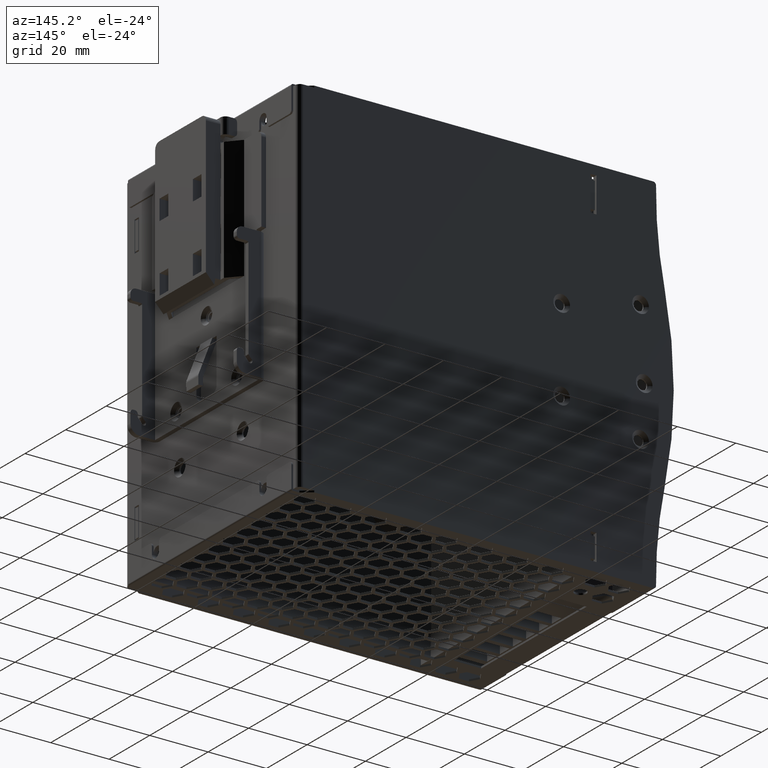
[diagram: clean part render]
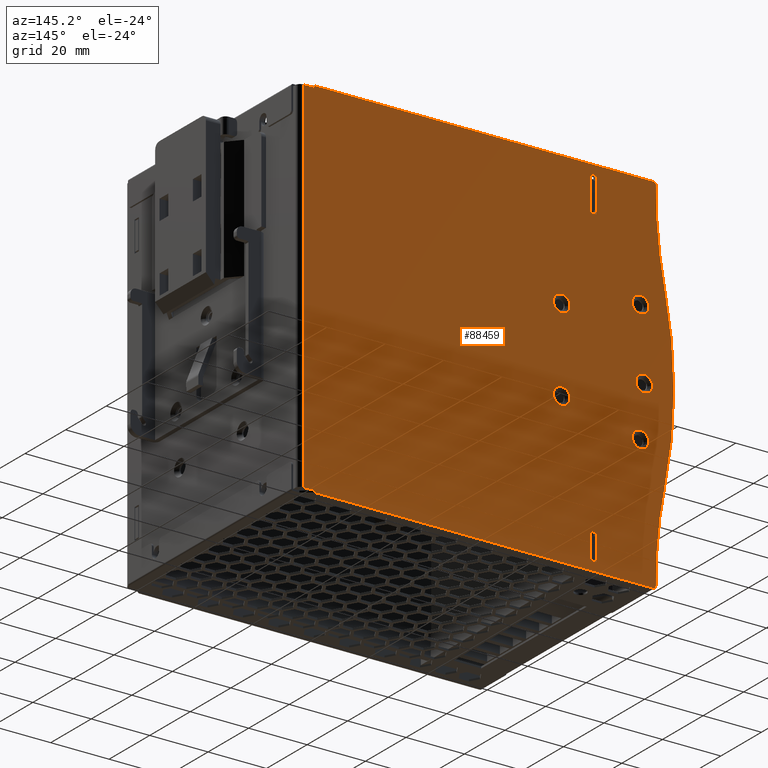
[diagram: same view with one face highlighted and labeled with its STEP entity id]
A machine part, auxiliary view. The second image highlights one B-rep face of the part: STEP entity #88459.
In plain terms, the highlighted planar face has unit normal (0, 1, 0).
Its self-contained STEP definition (entity closure, byte-faithful):
#9999=CARTESIAN_POINT('',(1782.250580458670400,98.986136999999999,9015.250615493780100));
#10000=VERTEX_POINT('',#9999);
#10007=CARTESIAN_POINT('',(1779.235383394250200,98.986136999999999,9046.731169943999700));
#10008=VERTEX_POINT('',#10007);
#10009=CARTESIAN_POINT('',(1929.642058532419900,98.986136999999999,9045.252396892430600));
#10010=DIRECTION('',(0.0,-1.0,0.0));
#10011=DIRECTION('',(1.0,0.0,0.0));
#10012=AXIS2_PLACEMENT_3D('',#10009,#10010,#10011);
#10013=CIRCLE('',#10012,150.413944486070020);
#10014=EDGE_CURVE('',#10008,#10000,#10013,.T.);
#10049=CARTESIAN_POINT('',(1782.250580458670400,98.986136999999999,8955.031387106919300));
#10050=VERTEX_POINT('',#10049);
#10057=CARTESIAN_POINT('',(1634.793260759230200,98.986136999999999,8985.141001300349700));
#10058=DIRECTION('',(0.0,-1.0,0.0));
#10059=DIRECTION('',(1.0,0.0,0.0));
#10060=AXIS2_PLACEMENT_3D('',#10057,#10058,#10059);
#10061=CIRCLE('',#10060,150.499999999401010);
#10062=EDGE_CURVE('',#10050,#10000,#10061,.T.);
#10303=CARTESIAN_POINT('',(1779.235383394250200,98.986136999999999,8923.550832656699600));
#10304=VERTEX_POINT('',#10303);
#10311=CARTESIAN_POINT('',(1929.642058532419900,98.986136999999999,8925.029605708270500));
#10312=DIRECTION('',(0.0,-1.0,0.0));
#10313=DIRECTION('',(1.0,0.0,0.0));
#10314=AXIS2_PLACEMENT_3D('',#10311,#10312,#10313);
#10315=CIRCLE('',#10314,150.413944486065990);
#10316=EDGE_CURVE('',#10050,#10304,#10315,.T.);
#10336=CARTESIAN_POINT('',(1778.235431723200000,98.986136999999999,8922.541001300600300));
#10337=VERTEX_POINT('',#10336);
#10344=CARTESIAN_POINT('',(1778.235431723200000,98.986136999999999,8923.541001300600300));
#10345=DIRECTION('',(0.0,-1.0,0.0));
#10346=DIRECTION('',(1.0,0.0,0.0));
#10347=AXIS2_PLACEMENT_3D('',#10344,#10345,#10346);
#10348=CIRCLE('',#10347,0.999999999998181);
#10349=EDGE_CURVE('',#10337,#10304,#10348,.T.);
#20259=CARTESIAN_POINT('',(1778.628123532730300,98.986137000000127,9045.202437894378800));
#20260=VERTEX_POINT('',#20259);
#20267=CARTESIAN_POINT('',(1781.106302798690200,98.986137000000127,9018.006636599000600));
#20268=VERTEX_POINT('',#20267);
#20269=CARTESIAN_POINT('',(1929.659298118490100,98.986136999999999,9045.254130987388600));
#20270=DIRECTION('',(0.0,-1.0,0.0));
#20271=DIRECTION('',(1.0,0.0,0.0));
#20272=AXIS2_PLACEMENT_3D('',#20269,#20270,#20271);
#20273=CIRCLE('',#20272,151.031183432202990);
#20274=EDGE_CURVE('',#20260,#20268,#20273,.T.);
#20986=CARTESIAN_POINT('',(1778.235431723200000,98.986136999999999,9047.741001300100800));
#20987=VERTEX_POINT('',#20986);
#20994=CARTESIAN_POINT('',(1662.193260303899900,98.986136999999999,9047.741001300100800));
#20995=VERTEX_POINT('',#20994);
#20996=CARTESIAN_POINT('',(1662.193260303899900,98.986136999999999,9047.741001300100800));
#20997=DIRECTION('',(1.0,0.0,0.0));
#20998=VECTOR('',#20997,116.042171419300080);
#20999=LINE('',#20996,#20998);
#21000=EDGE_CURVE('',#20995,#20987,#20999,.T.);
#30788=CARTESIAN_POINT('',(1778.235431723200000,98.986136999999999,9046.741001300102700));
#30789=DIRECTION('',(0.0,-1.0,0.0));
#30790=DIRECTION('',(1.0,0.0,0.0));
#30791=AXIS2_PLACEMENT_3D('',#30788,#30789,#30790);
#30792=CIRCLE('',#30791,0.999999999996302);
#30793=EDGE_CURVE('',#10008,#20987,#30792,.T.);
#30898=CARTESIAN_POINT('',(1662.193260303910200,98.986137000000127,8923.141001300600700));
#30899=VERTEX_POINT('',#30898);
#30900=CARTESIAN_POINT('',(1662.193260303899900,98.986137000000127,8922.541001300600300));
#30901=VERTEX_POINT('',#30900);
#30902=CARTESIAN_POINT('',(1662.193260303910200,98.986137000000127,8923.141001300600700));
#30903=DIRECTION('',(-1.705303E-011,0.0,-1.0));
#30904=VECTOR('',#30903,0.600000000000364);
#30905=LINE('',#30902,#30904);
#30906=EDGE_CURVE('',#30899,#30901,#30905,.T.);
#30937=CARTESIAN_POINT('',(1662.193260303899900,98.986136999999999,9047.141001300100500));
#30938=VERTEX_POINT('',#30937);
#30939=CARTESIAN_POINT('',(1662.193260303899900,98.986136999999999,9047.741001300100800));
#30940=DIRECTION('',(0.0,0.0,-1.0));
#30941=VECTOR('',#30940,0.600000000000364);
#30942=LINE('',#30939,#30941);
#30943=EDGE_CURVE('',#20995,#30938,#30942,.T.);
#31710=CARTESIAN_POINT('',(1778.235431723200000,98.986136999999999,8922.541001300600300));
#31711=DIRECTION('',(-1.0,0.0,0.0));
#31712=VECTOR('',#31711,116.042171419300080);
#31713=LINE('',#31710,#31712);
#31714=EDGE_CURVE('',#10337,#30901,#31713,.T.);
#85556=CARTESIAN_POINT('',(1781.106334254110200,98.986137000000127,8952.275537495708700));
#85557=VERTEX_POINT('',#85556);
#85564=CARTESIAN_POINT('',(1778.628123532830400,98.986137000000127,8925.079564995070500));
#85565=VERTEX_POINT('',#85564);
#85566=CARTESIAN_POINT('',(1929.659298118490100,98.986136999999999,8925.027871613339800));
#85567=DIRECTION('',(0.0,-1.0,0.0));
#85568=DIRECTION('',(1.0,0.0,0.0));
#85569=AXIS2_PLACEMENT_3D('',#85566,#85567,#85568);
#85570=CIRCLE('',#85569,151.031183432198990);
#85571=EDGE_CURVE('',#85557,#85565,#85570,.T.);
#87158=CARTESIAN_POINT('',(1658.393260576750000,98.986137000000127,9047.141001601199600));
#87159=VERTEX_POINT('',#87158);
#87160=CARTESIAN_POINT('',(1658.393260576750000,98.986137000000127,9047.141001601199600));
#87161=DIRECTION('',(0.999999999999997,-3.365729E-014,-0.000000079236620));
#87162=VECTOR('',#87161,3.799999727149964);
#87163=LINE('',#87160,#87162);
#87164=EDGE_CURVE('',#87159,#30938,#87163,.T.);
#87222=CARTESIAN_POINT('',(1658.393260576750000,98.986137000000127,8923.141001601199600));
#87223=VERTEX_POINT('',#87222);
#87231=CARTESIAN_POINT('',(1658.393260576750000,98.986137000000127,8923.141001601199600));
#87232=DIRECTION('',(0.999999999999997,0.0,-0.000000079104983));
#87233=VECTOR('',#87232,3.799999727160196);
#87234=LINE('',#87231,#87233);
#87235=EDGE_CURVE('',#87223,#30899,#87234,.T.);
#87269=CARTESIAN_POINT('',(1658.393260576750000,98.986137000000127,8923.141001601199600));
#87270=DIRECTION('',(0.0,0.0,1.0));
#87271=VECTOR('',#87270,124.0);
#87272=LINE('',#87269,#87271);
#87273=EDGE_CURVE('',#87223,#87159,#87272,.T.);
#88267=CARTESIAN_POINT('',(1928.628117575769900,98.986137000000127,8925.121837095779500));
#88268=DIRECTION('',(0.0,-1.0,0.0));
#88269=DIRECTION('',(0.0,0.0,1.0));
#88270=AXIS2_PLACEMENT_3D('',#88267,#88268,#88269);
#88271=CIRCLE('',#88270,149.999999999380010);
#88272=EDGE_CURVE('',#85557,#85565,#88271,.T.);
#88303=CARTESIAN_POINT('',(1668.443260576750200,98.986137000000127,8997.141001601199600));
#88304=DIRECTION('',(0.0,1.0,0.0));
#88305=DIRECTION('',(0.0,0.0,1.0));
#88306=AXIS2_PLACEMENT_3D('',#88303,#88304,#88305);
#88307=PLANE('',#88306);
#88308=ORIENTED_EDGE('',*,*,#87235,.F.);
#88309=ORIENTED_EDGE('',*,*,#87273,.T.);
#88310=ORIENTED_EDGE('',*,*,#87164,.T.);
#88311=ORIENTED_EDGE('',*,*,#30943,.F.);
#88312=ORIENTED_EDGE('',*,*,#21000,.T.);
#88313=ORIENTED_EDGE('',*,*,#30793,.F.);
#88314=ORIENTED_EDGE('',*,*,#10014,.T.);
#88315=ORIENTED_EDGE('',*,*,#10062,.F.);
#88316=ORIENTED_EDGE('',*,*,#10316,.T.);
#88317=ORIENTED_EDGE('',*,*,#10349,.F.);
#88318=ORIENTED_EDGE('',*,*,#31714,.T.);
#88319=ORIENTED_EDGE('',*,*,#30906,.F.);
#88320=EDGE_LOOP('',(#88308,#88309,#88310,#88311,#88312,#88313,#88314,#88315,#88316,#88317,#88318,#88319));
#88321=FACE_OUTER_BOUND('',#88320,.T.);
#88322=CARTESIAN_POINT('',(1928.628117575769900,98.986137000000127,9045.160166106099500));
#88323=DIRECTION('',(0.0,-1.0,0.0));
#88324=DIRECTION('',(0.0,0.0,1.0));
#88325=AXIS2_PLACEMENT_3D('',#88322,#88323,#88324);
#88326=CIRCLE('',#88325,149.999999999391010);
#88327=EDGE_CURVE('',#20260,#20268,#88326,.T.);
#88328=ORIENTED_EDGE('',*,*,#88327,.T.);
#88329=ORIENTED_EDGE('',*,*,#20274,.F.);
#88330=EDGE_LOOP('',(#88328,#88329));
#88331=FACE_BOUND('',#88330,.T.);
#88332=ORIENTED_EDGE('',*,*,#85571,.F.);
#88333=ORIENTED_EDGE('',*,*,#88272,.T.);
#88334=EDGE_LOOP('',(#88332,#88333));
#88335=FACE_BOUND('',#88334,.T.);
#88336=CARTESIAN_POINT('',(1756.843718376460200,98.986137000000127,8925.641001601190500));
#88337=VERTEX_POINT('',#88336);
#88338=CARTESIAN_POINT('',(1758.843718376450400,98.986137000000127,8925.641001601190500));
#88339=VERTEX_POINT('',#88338);
#88340=CARTESIAN_POINT('',(1756.843718376460200,98.986137000000127,8925.641001601190500));
#88341=DIRECTION('',(1.0,0.0,0.0));
#88342=VECTOR('',#88341,1.999999999990223);
#88343=LINE('',#88340,#88342);
#88344=EDGE_CURVE('',#88337,#88339,#88343,.T.);
#88345=ORIENTED_EDGE('',*,*,#88344,.T.);
#88346=CARTESIAN_POINT('',(1758.843718376450400,98.986137000000127,8937.641001601150500));
#88347=VERTEX_POINT('',#88346);
#88348=CARTESIAN_POINT('',(1758.843718376450400,98.986137000000127,8925.641001601190500));
#88349=DIRECTION('',(0.0,0.0,1.0));
#88350=VECTOR('',#88349,11.999999999959982);
#88351=LINE('',#88348,#88350);
#88352=EDGE_CURVE('',#88339,#88347,#88351,.T.);
#88353=ORIENTED_EDGE('',*,*,#88352,.T.);
#88354=CARTESIAN_POINT('',(1756.843718376460200,98.986137000000127,8937.641001601150500));
#88355=VERTEX_POINT('',#88354);
#88356=CARTESIAN_POINT('',(1758.843718376450400,98.986137000000127,8937.641001601150500));
#88357=DIRECTION('',(-1.0,0.0,0.0));
#88358=VECTOR('',#88357,1.999999999990223);
#88359=LINE('',#88356,#88358);
#88360=EDGE_CURVE('',#88347,#88355,#88359,.T.);
#88361=ORIENTED_EDGE('',*,*,#88360,.T.);
#88362=CARTESIAN_POINT('',(1756.843718376460200,98.986137000000127,8937.641001601150500));
#88363=DIRECTION('',(0.0,0.0,-1.0));
#88364=VECTOR('',#88363,11.999999999959982);
#88365=LINE('',#88362,#88364);
#88366=EDGE_CURVE('',#88355,#88337,#88365,.T.);
#88367=ORIENTED_EDGE('',*,*,#88366,.T.);
#88368=EDGE_LOOP('',(#88345,#88353,#88361,#88367));
#88369=FACE_BOUND('',#88368,.T.);
#88370=CARTESIAN_POINT('',(1756.843718376460200,98.986137000000127,9035.641001600761200));
#88371=VERTEX_POINT('',#88370);
#88372=CARTESIAN_POINT('',(1758.843718376450400,98.986137000000127,9035.641001600761200));
#88373=VERTEX_POINT('',#88372);
#88374=CARTESIAN_POINT('',(1756.843718376460200,98.986137000000127,9035.641001600761200));
#88375=DIRECTION('',(1.0,0.0,0.0));
#88376=VECTOR('',#88375,1.999999999990223);
#88377=LINE('',#88374,#88376);
#88378=EDGE_CURVE('',#88371,#88373,#88377,.T.);
#88379=ORIENTED_EDGE('',*,*,#88378,.T.);
#88380=CARTESIAN_POINT('',(1758.843718376450400,98.986137000000127,9044.641001600710300));
#88381=VERTEX_POINT('',#88380);
#88382=CARTESIAN_POINT('',(1758.843718376450400,98.986137000000127,9035.641001600761200));
#88383=DIRECTION('',(0.0,0.0,1.0));
#88384=VECTOR('',#88383,8.999999999949068);
#88385=LINE('',#88382,#88384);
#88386=EDGE_CURVE('',#88373,#88381,#88385,.T.);
#88387=ORIENTED_EDGE('',*,*,#88386,.T.);
#88388=CARTESIAN_POINT('',(1756.843718376460200,98.986137000000127,9044.641001600710300));
#88389=VERTEX_POINT('',#88388);
#88390=CARTESIAN_POINT('',(1758.843718376450400,98.986137000000127,9044.641001600710300));
#88391=DIRECTION('',(-1.0,0.0,0.0));
#88392=VECTOR('',#88391,1.999999999990223);
#88393=LINE('',#88390,#88392);
#88394=EDGE_CURVE('',#88381,#88389,#88393,.T.);
#88395=ORIENTED_EDGE('',*,*,#88394,.T.);
#88396=CARTESIAN_POINT('',(1756.843718376460200,98.986137000000127,9044.641001600710300));
#88397=DIRECTION('',(0.0,0.0,-1.0));
#88398=VECTOR('',#88397,8.999999999949068);
#88399=LINE('',#88396,#88398);
#88400=EDGE_CURVE('',#88389,#88371,#88399,.T.);
#88401=ORIENTED_EDGE('',*,*,#88400,.T.);
#88402=EDGE_LOOP('',(#88379,#88387,#88395,#88401));
#88403=FACE_BOUND('',#88402,.T.);
#88404=CARTESIAN_POINT('',(1776.793718376460200,98.986137000000127,9003.041031600880200));
#88405=VERTEX_POINT('',#88404);
#88406=CARTESIAN_POINT('',(1773.943718376459900,98.986137000000127,9003.041031600880200));
#88407=DIRECTION('',(0.0,-1.0,0.0));
#88408=DIRECTION('',(-1.0,0.0,0.0));
#88409=AXIS2_PLACEMENT_3D('',#88406,#88407,#88408);
#88410=CIRCLE('',#88409,2.850000000000001);
#88411=EDGE_CURVE('',#88405,#88405,#88410,.T.);
#88412=ORIENTED_EDGE('',*,*,#88411,.T.);
#88413=EDGE_LOOP('',(#88412));
#88414=FACE_BOUND('',#88413,.T.);
#88415=CARTESIAN_POINT('',(1778.043718376460200,98.986137000000127,8985.541001600930000));
#88416=VERTEX_POINT('',#88415);
#88417=CARTESIAN_POINT('',(1775.193718376459900,98.986137000000127,8985.541001600930000));
#88418=DIRECTION('',(0.0,-1.0,0.0));
#88419=DIRECTION('',(-1.0,0.0,0.0));
#88420=AXIS2_PLACEMENT_3D('',#88417,#88418,#88419);
#88421=CIRCLE('',#88420,2.850000000000001);
#88422=EDGE_CURVE('',#88416,#88416,#88421,.T.);
#88423=ORIENTED_EDGE('',*,*,#88422,.T.);
#88424=EDGE_LOOP('',(#88423));
#88425=FACE_BOUND('',#88424,.T.);
#88426=CARTESIAN_POINT('',(1776.793718376460200,98.986137000000127,8961.541031600980200));
#88427=VERTEX_POINT('',#88426);
#88428=CARTESIAN_POINT('',(1773.943718376459900,98.986137000000127,8961.541031600980200));
#88429=DIRECTION('',(0.0,-1.0,0.0));
#88430=DIRECTION('',(-1.0,0.0,0.0));
#88431=AXIS2_PLACEMENT_3D('',#88428,#88429,#88430);
#88432=CIRCLE('',#88431,2.850000000000001);
#88433=EDGE_CURVE('',#88427,#88427,#88432,.T.);
#88434=ORIENTED_EDGE('',*,*,#88433,.T.);
#88435=EDGE_LOOP('',(#88434));
#88436=FACE_BOUND('',#88435,.T.);
#88437=CARTESIAN_POINT('',(1749.793718376460000,98.986137000000127,8968.041031600980200));
#88438=VERTEX_POINT('',#88437);
#88439=CARTESIAN_POINT('',(1746.943718376460100,98.986137000000127,8968.041031600980200));
#88440=DIRECTION('',(0.0,-1.0,0.0));
#88441=DIRECTION('',(-1.0,0.0,0.0));
#88442=AXIS2_PLACEMENT_3D('',#88439,#88440,#88441);
#88443=CIRCLE('',#88442,2.850000000000001);
#88444=EDGE_CURVE('',#88438,#88438,#88443,.T.);
#88445=ORIENTED_EDGE('',*,*,#88444,.T.);
#88446=EDGE_LOOP('',(#88445));
#88447=FACE_BOUND('',#88446,.T.);
#88448=CARTESIAN_POINT('',(1749.793718376460000,98.986137000000127,8996.541031600880200));
#88449=VERTEX_POINT('',#88448);
#88450=CARTESIAN_POINT('',(1746.943718376460100,98.986137000000127,8996.541031600880200));
#88451=DIRECTION('',(0.0,-1.0,0.0));
#88452=DIRECTION('',(-1.0,0.0,0.0));
#88453=AXIS2_PLACEMENT_3D('',#88450,#88451,#88452);
#88454=CIRCLE('',#88453,2.850000000000001);
#88455=EDGE_CURVE('',#88449,#88449,#88454,.T.);
#88456=ORIENTED_EDGE('',*,*,#88455,.T.);
#88457=EDGE_LOOP('',(#88456));
#88458=FACE_BOUND('',#88457,.T.);
#88459=ADVANCED_FACE('',(#88321,#88331,#88335,#88369,#88403,#88414,#88425,#88436,#88447,#88458),#88307,.T.);